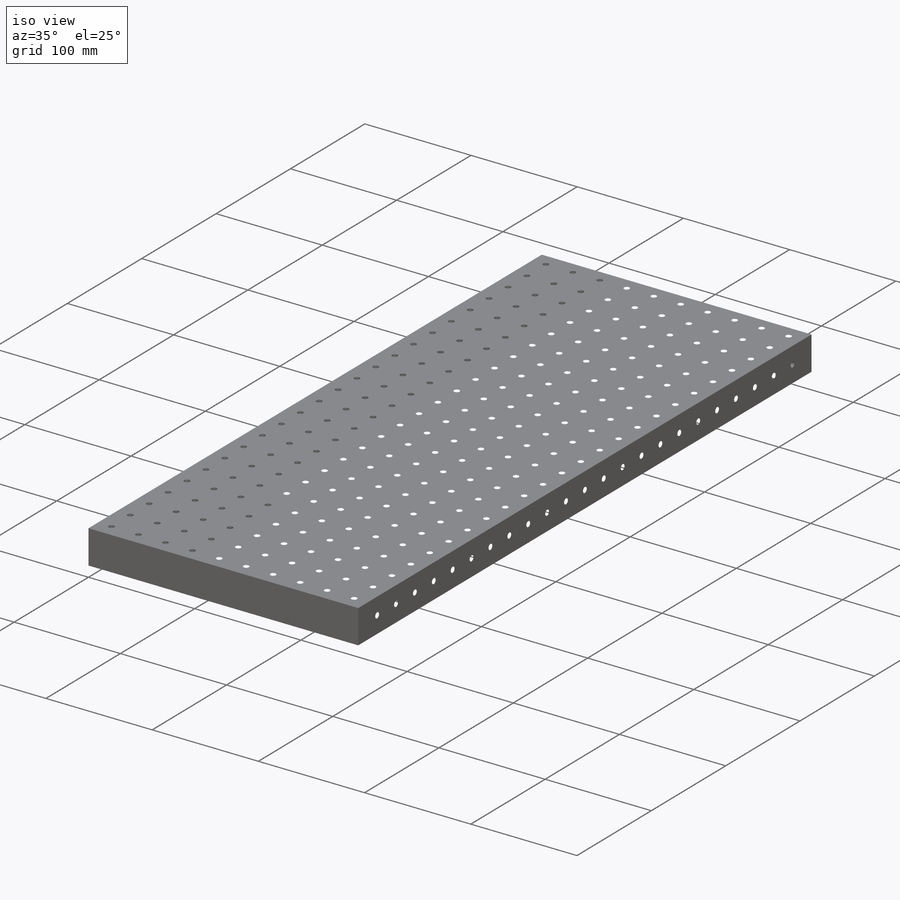
[diagram: iso view]
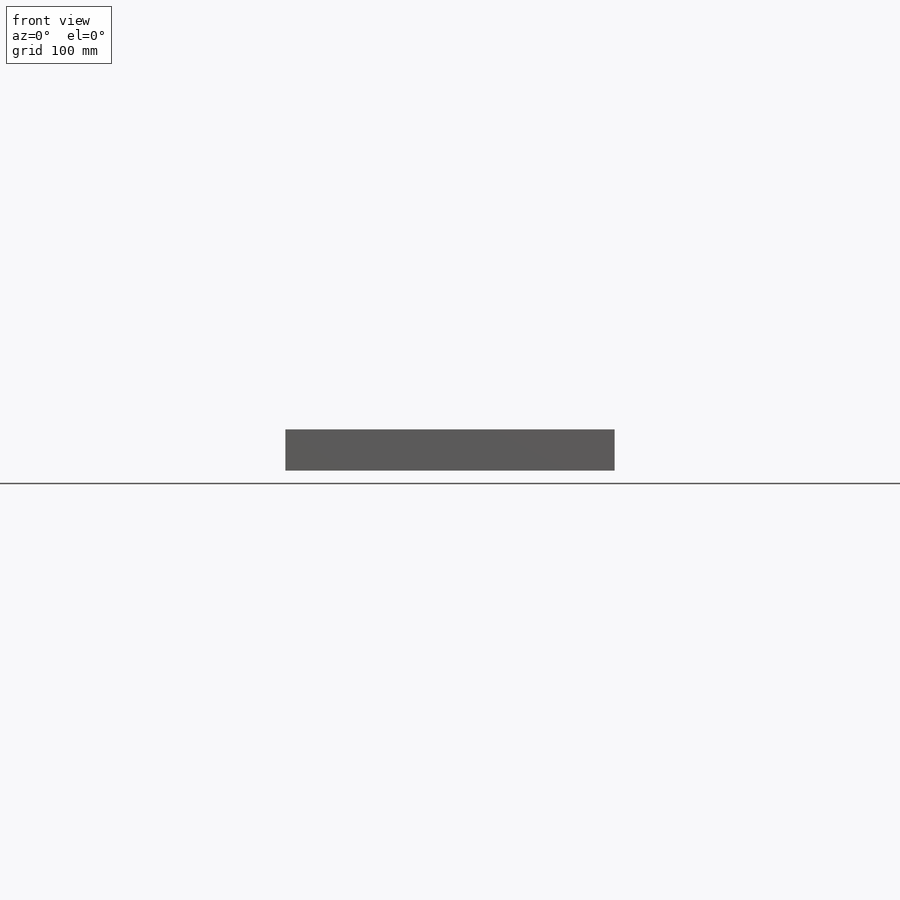
[diagram: front view]
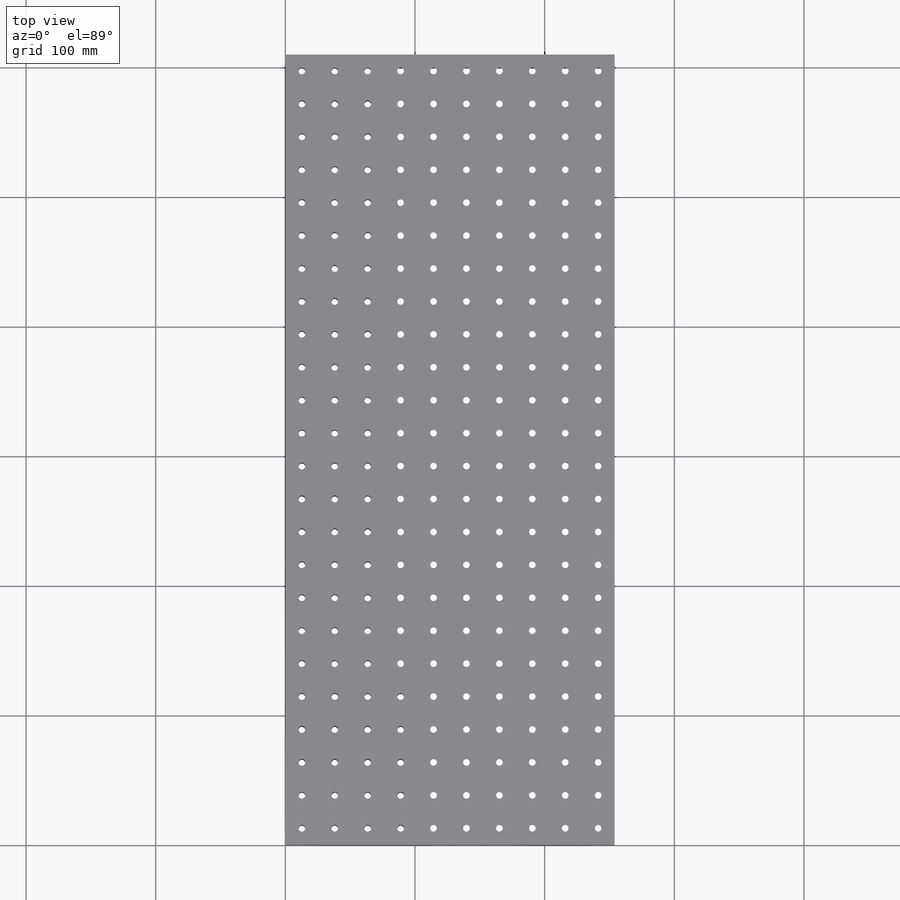
[diagram: top view]
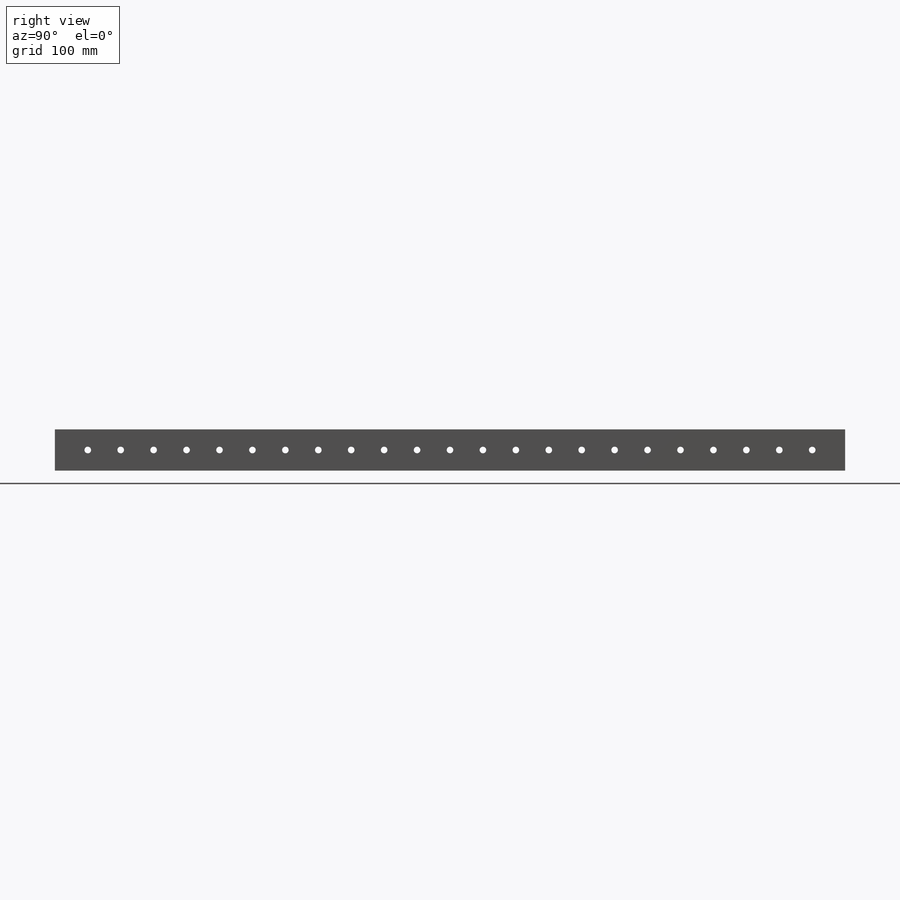
[diagram: right view]
SOLIDWORKS PART (.sldprt)
format: sldprt  version: not decoded by parser v0  size: 1,098,752 bytes
history: native  units: mm
features: sketch x10, hole x4, thread x4, pattern_linear x4, material x1, extrude x1 (+11 scaffold rows collapsed)
feature tree (35):
  scaffold x11  (default folders/planes/origin — collapsed)
  material  "Material <not specified>"
  sketch  "Sketch1"  dims[D1=609.6mm D2=254.0mm]
  extrude  "Boss-Extrude1"  Depth=31.75mm
  hole  "1/4-20 Tapped Hole1"  Diameter=5.1054mm Depth=31.75mm
  sketch  "Sketch3"
  sketch  "Sketch2"  dims[hole-wizard template sketch: 60 standard entries collapsed; hole parameters kept: c18.Thru Tap Drill Depth=31.75mm]
  thread  "Hole Thread1"  Diameter=6.35mm  [1 undecoded]
  pattern_linear  "LPattern1"  Count1=24 Count2=10 Spacing1=25.4mm Spacing2=25.4mm
  hole  "1/4-20 Tapped Hole2"  Diameter=5.1054mm Depth=31.75mm
  sketch  "Sketch7"  dims[D1=25.4mm D2=15.875mm D3=16.51mm D4=457.2mm]
  sketch  "Sketch6"  dims[hole-wizard template sketch: 50 standard entries collapsed; hole parameters above]
  thread  "Hole Thread2"  Diameter=25.4mm  [1 undecoded]
  pattern_linear  "LPattern2"  Count1=23 Count2=1 Spacing1=25.4mm Spacing2=2.54mm
  hole  "1/4-20 Tapped Hole3"  Diameter=5.1054mm Depth=31.75mm
  sketch  "Sketch10"  dims[c1.D1=25.4mm c1.D2=15.875mm c1.D3=16.51mm c1.D4=457.2mm c2.D1=25.4mm c2.D2=15.875mm]
  sketch  "Sketch12"  dims[hole-wizard template sketch: 50 standard entries collapsed; hole parameters above]
  thread  "Hole Thread7"  Diameter=25.4mm  [1 undecoded]
  pattern_linear  "LPattern3"  Count1=23 Count2=1 Spacing1=25.4mm Spacing2=2.54mm
  hole  "1/4-20 Tapped Hole4"  Diameter=5.1054mm Depth=31.75mm
  sketch  "Sketch15"  dims[c1.D1=25.4mm c1.D2=15.875mm c1.D3=16.51mm c1.D4=457.2mm c2.D1=25.4mm c2.D2=~25.724918mm c3.D2=90.0deg c4.D2=15.875mm]
  sketch  "Sketch17"  dims[hole-wizard template sketch: 50 standard entries collapsed; hole parameters above]
  thread  "Hole Thread4"  Diameter=25.4mm  [1 undecoded]
  pattern_linear  "LPattern6"  Count1=9 Count2=1 Spacing1=25.4mm Spacing2=2.54mm
  sketch  "Sketch19"
decode coverage: 21 of 23 modeling features carry decoded parameters
note: ~ marks probable driven/reference dimensions
note: 4 parameter values undecoded
summary: Diameter pulled from absorbed wizard sketch
note: suppression state not decoded; provenance and decode notes live in map.json
